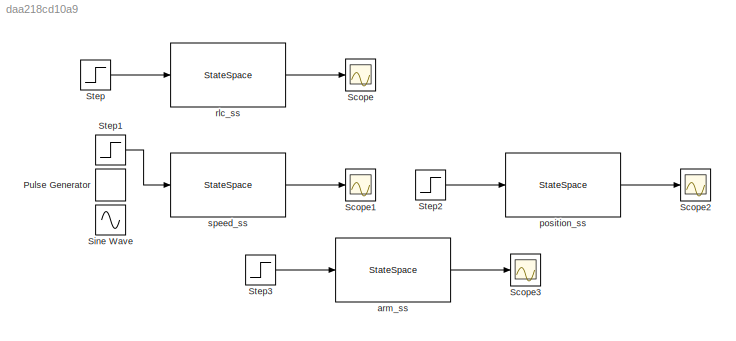
MODEL slx_daa218cd10a9
KIND model
CONFIG AbsTol = auto
CONFIG EnableMultiTasking = off
CONFIG FixedStep = auto
CONFIG MaxStep = auto
CONFIG MinStep = auto
CONFIG RelTol = 1e-3
CONFIG SampleTimeConstraint = Unconstrained
CONFIG SolverName = VariableStepAuto
CONFIG StartTime = 0.0
CONFIG StopTime = 5
BLOCK [DiscretePulseGenerator] Pulse Generator
  Period = 1
  PulseType = Time based
  PulseWidth = 50
BLOCK [Scope] Scope
  Floating = off
  NumInputPorts = 1
  ScopeSpecificationString = Simulink.scopes.TimeScopeBlockCfg('CurrentConfiguration', extmgr.ConfigurationSet(extmgr.Configuration('Core','General UI',true),extmgr.Configuration('Core','Source UI',true),extmgr.Configuration('Sources','WiredSimulink',true),extmgr.Configuration('Visuals','Time Domain',true,'SerializedDisplays',{struct('MinYLimReal','-1.1949','MaxYLimReal','1.24388','YLabelReal','','MinYLimMag','0.00000','MaxYL...<+1324ch>
BLOCK [Scope] Scope1
  Floating = off
  NumInputPorts = 1
  ScopeSpecificationString = Simulink.scopes.TimeScopeBlockCfg('CurrentConfiguration', extmgr.ConfigurationSet(extmgr.Configuration('Core','General UI',true),extmgr.Configuration('Core','Source UI',true),extmgr.Configuration('Sources','WiredSimulink',true,'DataLoggingVariableName','ScopeData1'),extmgr.Configuration('Visuals','Time Domain',true,'SerializedDisplays',{struct('MinYLimReal','-0.41103','MaxYLimReal','3.69925','YLab...<+1400ch>
BLOCK [Scope] Scope2
  Floating = off
  NumInputPorts = 1
  ScopeSpecificationString = Simulink.scopes.TimeScopeBlockCfg('CurrentConfiguration', extmgr.ConfigurationSet(extmgr.Configuration('Core','General UI',true),extmgr.Configuration('Core','Source UI',true),extmgr.Configuration('Sources','WiredSimulink',true,'DataLoggingVariableName','ScopeData2'),extmgr.Configuration('Visuals','Time Domain',true,'SerializedDisplays',{struct('MinYLimReal','-5420508825052.33398','MaxYLimReal','48...<+1468ch>
BLOCK [Scope] Scope3
  Floating = off
  NumInputPorts = 1
  ScopeSpecificationString = Simulink.scopes.TimeScopeBlockCfg('CurrentConfiguration', extmgr.ConfigurationSet(extmgr.Configuration('Core','General UI',true),extmgr.Configuration('Core','Source UI',true),extmgr.Configuration('Sources','WiredSimulink',true,'DataLoggingVariableName','ScopeData3'),extmgr.Configuration('Visuals','Time Domain',true,'SerializedDisplays',{struct('MinYLimReal','-0.00009','MaxYLimReal','0.00009','YLab...<+1365ch>
BLOCK [Sin] Sine Wave
  SampleTime = 0
BLOCK [Step] Step
  SampleTime = 0
BLOCK [Step] Step1
  SampleTime = 0
BLOCK [Step] Step2
  SampleTime = 0
BLOCK [Step] Step3
  SampleTime = 0
BLOCK [StateSpace] arm_ss
  A = [-1.193e+04 1.951 -113.2 0; 64 0 0 0; 0 128 0 0; 0 0 1 0]
  B = [0.25; 0; 0; 0]
  C = [0 -0.4713 0 0]
  D = 0
  InitialCondition = 0
BLOCK [StateSpace] position_ss
  A = [-1.193e+04 1.951 113.2 0; 64 0 0 0; 0 128 0 0; 0 0 1 0]
  B = [8; 0; 0; 0]
  C = [0 8.57 0 -0.01379]
  InitialCondition = 0
BLOCK [StateSpace] rlc_ss
  A = [-R/L -1/L; 1/C 0]
  B = [1/L; 0]
  C = [-R -1]
  InitFcn = R = 1;\nL = 1e-3;\nC = 1e-6;
  InitialCondition = 0
BLOCK [StateSpace] speed_ss
  A = [-B/J, Kt/J; 0, -1/R/L];
  B = [0; 1/L];
  C = [1, 0]
  D = 0
  InitFcn = J = 0.01; % moment of inertia\nB = 0.001; % friction coefficient\nKt = 0.01; % torque constant\nR = 1; % resistance\nL = 0.01; % inductance
  InitialCondition = 0
LINE Step1:1 -> speed_ss:1
LINE Step2:1 -> position_ss:1
LINE Step3:1 -> arm_ss:1
LINE Step:1 -> rlc_ss:1
LINE arm_ss:1 -> Scope3:1
LINE position_ss:1 -> Scope2:1
LINE rlc_ss:1 -> Scope:1
LINE speed_ss:1 -> Scope1:1
